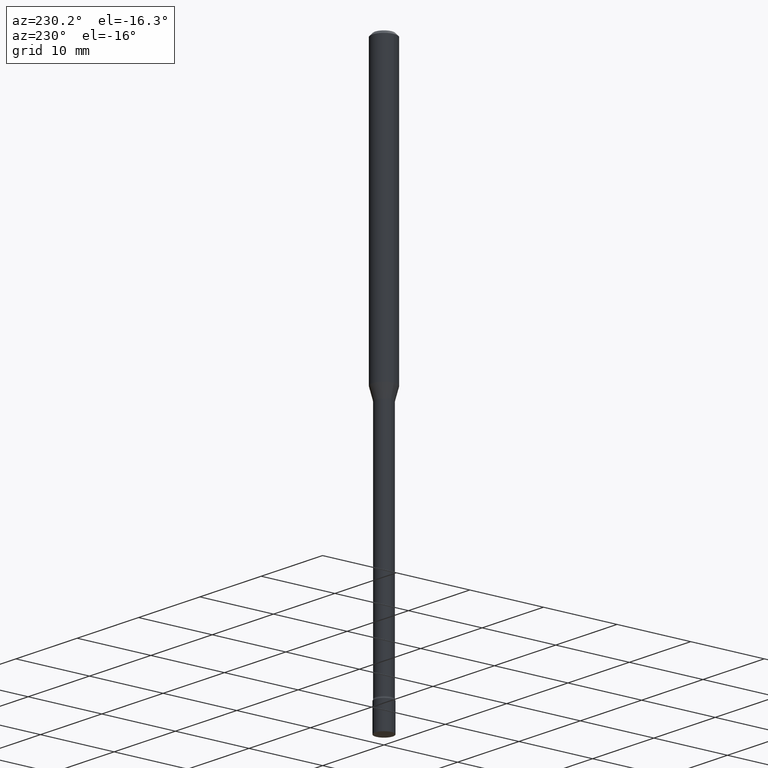
[diagram: clean part render]
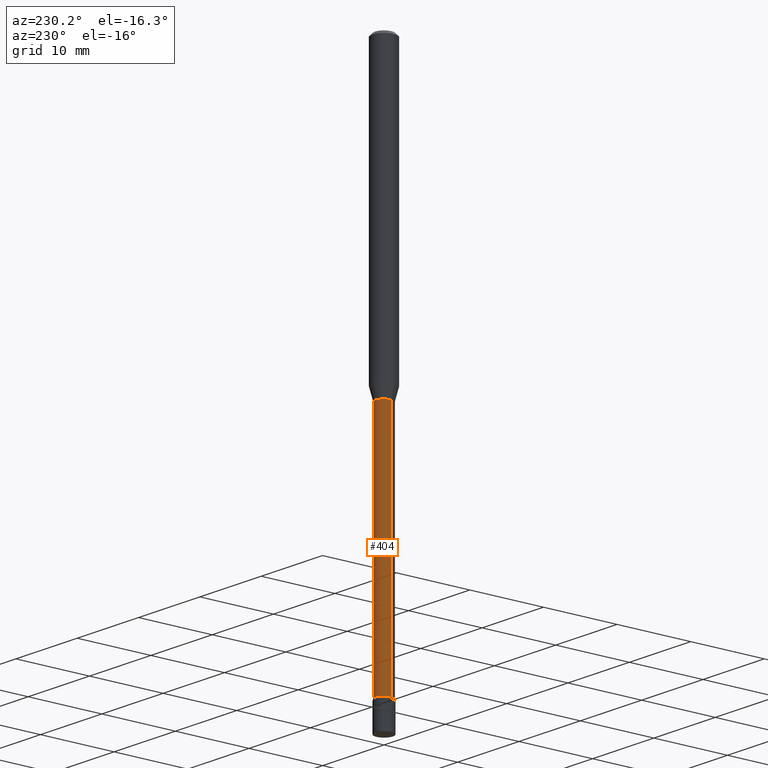
[diagram: same view with one face highlighted and labeled with its STEP entity id]
A machine part, auxiliary view. The second image highlights one B-rep face of the part: STEP entity #404.
In plain terms, the highlighted cylindrical surface (edge-blend (fillet) strip) has radius 1.1341 mm, axis along (-0, 0, 1).
Its self-contained STEP definition (entity closure, byte-faithful):
#6 = LINE ( 'NONE', #321, #9 ) ;
#9 = VECTOR ( 'NONE', #483, 39.37007874015748143 ) ;
#12 = ORIENTED_EDGE ( 'NONE', *, *, #455, .T. ) ;
#23 = CARTESIAN_POINT ( 'NONE',  ( -0.04464999999999999525, -7.407956464872171030E-15, -1.576974787463811367 ) ) ;
#29 = EDGE_CURVE ( 'NONE', #434, #263, #116, .T. ) ;
#31 = DIRECTION ( 'NONE',  ( 1.000000000000000000, -6.982962677686266711E-15, 4.876176775795935793E-29 ) ) ;
#37 = EDGE_CURVE ( 'NONE', #225, #263, #6, .T. ) ;
#76 = CARTESIAN_POINT ( 'NONE',  ( 0.04465000000000009933, -3.117892835586925182E-16, 2.177212930392890079E-30 ) ) ;
#84 = DIRECTION ( 'NONE',  ( 1.000000000000000000, -6.982962677686258822E-15, 0.000000000000000000 ) ) ;
#106 = VERTEX_POINT ( 'NONE', #278 ) ;
#116 = CIRCLE ( 'NONE', #240, 0.04464999999999999525 ) ;
#118 = AXIS2_PLACEMENT_3D ( 'NONE', #148, #305, #31 ) ;
#136 = ORIENTED_EDGE ( 'NONE', *, *, #423, .F. ) ;
#148 = CARTESIAN_POINT ( 'NONE',  ( 0.000000000000000000, 0.000000000000000000, 0.000000000000000000 ) ) ;
#216 = DIRECTION ( 'NONE',  ( 1.000000000000000000, -6.982962677686249356E-15, 0.000000000000000000 ) ) ;
#224 = FACE_OUTER_BOUND ( 'NONE', #231, .T. ) ;
#225 = VERTEX_POINT ( 'NONE', #253 ) ;
#231 = EDGE_LOOP ( 'NONE', ( #12, #469, #399, #136 ) ) ;
#240 = AXIS2_PLACEMENT_3D ( 'NONE', #438, #481, #84 ) ;
#253 = CARTESIAN_POINT ( 'NONE',  ( -0.04465000000000018954, -9.632423302297009755E-15, -2.848203551853162985 ) ) ;
#260 = CIRCLE ( 'NONE', #300, 0.04465000000000018954 ) ;
#262 = CARTESIAN_POINT ( 'NONE',  ( 0.04464999999999999525, -5.817767325814724061E-15, -1.576974787463811367 ) ) ;
#263 = VERTEX_POINT ( 'NONE', #23 ) ;
#267 = CYLINDRICAL_SURFACE ( 'NONE', #118, 0.04465000000000009933 ) ;
#278 = CARTESIAN_POINT ( 'NONE',  ( 0.04465000000000018954, -1.025623883408077648E-14, -2.848203551853162985 ) ) ;
#300 = AXIS2_PLACEMENT_3D ( 'NONE', #424, #376, #216 ) ;
#305 = DIRECTION ( 'NONE',  ( -2.445468806185136597E-29, 3.491481338843145583E-15, 1.000000000000000000 ) ) ;
#321 = CARTESIAN_POINT ( 'NONE',  ( -0.04465000000000009933, 3.172573315168854388E-16, -2.196304517798820251E-30 ) ) ;
#376 = DIRECTION ( 'NONE',  ( -2.445468806185136597E-29, 3.491481338843145583E-15, 1.000000000000000000 ) ) ;
#399 = ORIENTED_EDGE ( 'NONE', *, *, #29, .F. ) ;
#404 = ADVANCED_FACE ( 'NONE', ( #224 ), #267, .T. ) ;
#423 = EDGE_CURVE ( 'NONE', #106, #434, #468, .T. ) ;
#424 = CARTESIAN_POINT ( 'NONE',  ( 6.965192939722619373E-29, -9.944449550522084107E-15, -2.848203551853162985 ) ) ;
#434 = VERTEX_POINT ( 'NONE', #262 ) ;
#438 = CARTESIAN_POINT ( 'NONE',  ( 3.856442650883186298E-29, -5.505978042256032480E-15, -1.576974787463811367 ) ) ;
#455 = EDGE_CURVE ( 'NONE', #106, #225, #260, .T. ) ;
#468 = LINE ( 'NONE', #76, #484 ) ;
#469 = ORIENTED_EDGE ( 'NONE', *, *, #37, .T. ) ;
#470 = DIRECTION ( 'NONE',  ( -2.445468806185136877E-29, 3.491481338843145188E-15, 1.000000000000000000 ) ) ;
#481 = DIRECTION ( 'NONE',  ( -2.445468806185136597E-29, 3.491481338843145583E-15, 1.000000000000000000 ) ) ;
#483 = DIRECTION ( 'NONE',  ( -2.445468806185136877E-29, 3.491481338843145188E-15, 1.000000000000000000 ) ) ;
#484 = VECTOR ( 'NONE', #470, 39.37007874015748143 ) ;